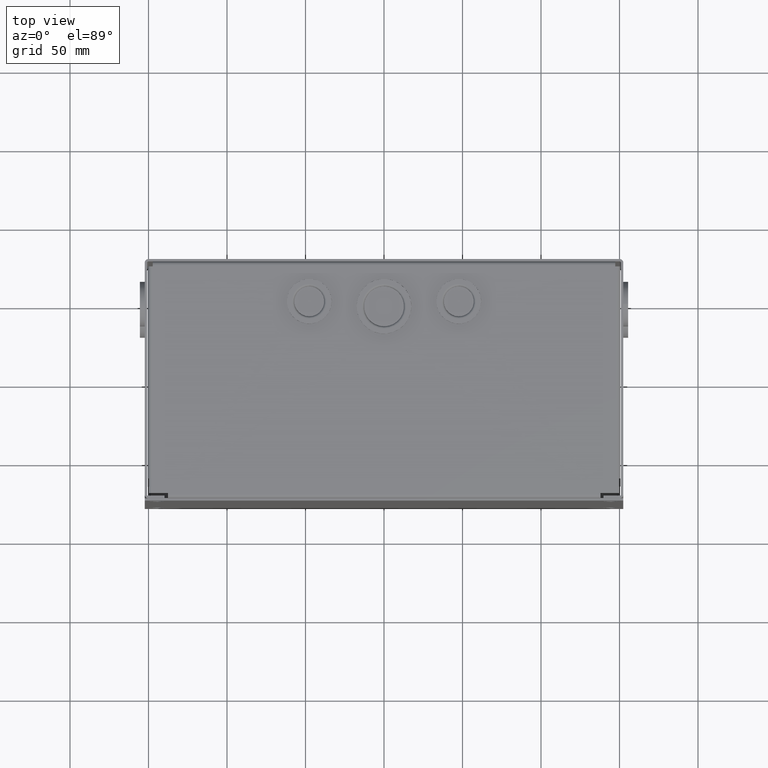
[diagram: clean part render]
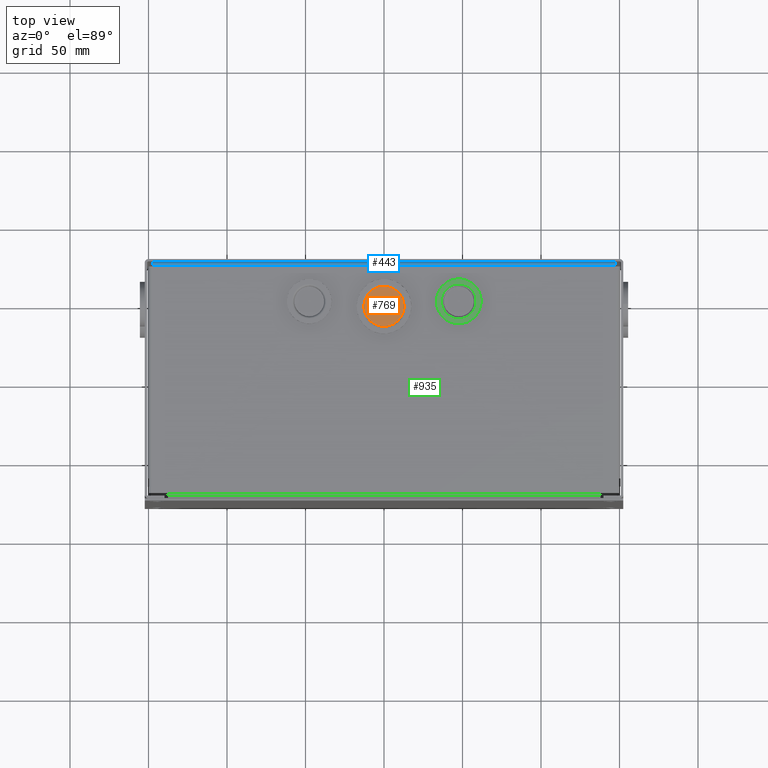
[diagram: same view with three faces highlighted in distinct colors, each labeled with its STEP entity id]
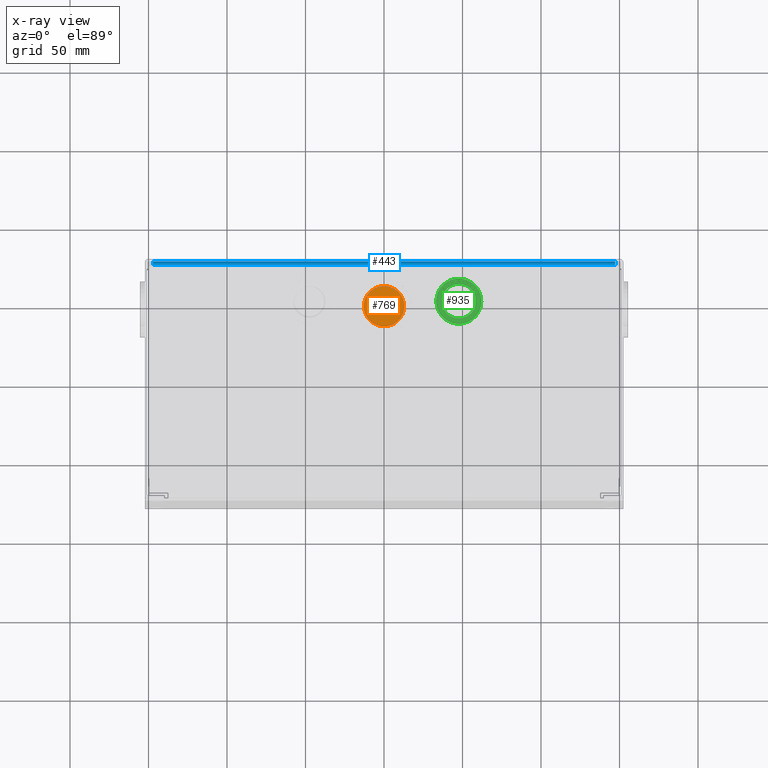
[diagram: x-ray of the same camera — body ghosted, the three highlighted faces saturated]
A machine part, top view with three faces highlighted in distinct colors.
The next image is the same camera in x-ray (body ghosted, the three faces saturated) — at least one of them is partly hidden behind the body in this view.
Their STEP definitions:

[orange] entity #769 — the highlighted planar face has unit normal (-0, 0, 1).
#769 = ADVANCED_FACE( '', ( #1714 ), #1715, .T. );
#1714 = FACE_OUTER_BOUND( '', #2828, .T. );
#1715 = PLANE( '', #2829 );
#2828 = EDGE_LOOP( '', ( #4809 ) );
#2829 = AXIS2_PLACEMENT_3D( '', #4810, #4811, #4812 );
#4809 = ORIENTED_EDGE( '', *, *, #6627, .T. );
#4810 = CARTESIAN_POINT( '', ( 0.000000000000000, -1.52400000000000, -46.7995000000000 ) );
#4811 = DIRECTION( '', ( 0.000000000000000, -1.00000000000000, 0.000000000000000 ) );
#4812 = DIRECTION( '', ( 0.000000000000000, 0.000000000000000, -1.00000000000000 ) );
#6627 = EDGE_CURVE( '', #8014, #8014, #8015, .T. );
#8014 = VERTEX_POINT( '', #9939 );
#8015 = CIRCLE( '', #9940, 12.7635000000000 );
#9939 = CARTESIAN_POINT( '', ( 0.000000000000000, -1.52400000000000, -59.5630000000000 ) );
#9940 = AXIS2_PLACEMENT_3D( '', #11111, #11112, #11113 );
#11111 = CARTESIAN_POINT( '', ( 0.000000000000000, -1.52400000000000, -46.7995000000000 ) );
#11112 = DIRECTION( '', ( 0.000000000000000, -1.00000000000000, 0.000000000000000 ) );
#11113 = DIRECTION( '', ( 0.000000000000000, 0.000000000000000, -1.00000000000000 ) );

[blue] entity #443 — the highlighted cylindrical surface (edge-blend (fillet) strip) has radius 2.3368 mm, axis along (1, 0, 0).
#443 = ADVANCED_FACE( '', ( #1139 ), #1140, .T. );
#1139 = FACE_OUTER_BOUND( '', #2249, .T. );
#1140 = CYLINDRICAL_SURFACE( '', #2250, 2.33680000000000 );
#2249 = EDGE_LOOP( '', ( #3402, #3403, #3404, #3405 ) );
#2250 = AXIS2_PLACEMENT_3D( '', #3406, #3407, #3408 );
#3402 = ORIENTED_EDGE( '', *, *, #5965, .T. );
#3403 = ORIENTED_EDGE( '', *, *, #5966, .F. );
#3404 = ORIENTED_EDGE( '', *, *, #5967, .F. );
#3405 = ORIENTED_EDGE( '', *, *, #5968, .F. );
#3406 = CARTESIAN_POINT( '', ( -147.304529442132, 2.33680000000000, -73.1012000000000 ) );
#3407 = DIRECTION( '', ( -1.00000000000000, -0.000000000000000, -0.000000000000000 ) );
#3408 = DIRECTION( '', ( 0.000000000000000, 1.00000000000000, 0.000000000000000 ) );
#5965 = EDGE_CURVE( '', #6975, #6976, #6977, .T. );
#5966 = EDGE_CURVE( '', #6978, #6976, #6979, .T. );
#5967 = EDGE_CURVE( '', #6980, #6978, #6981, .T. );
#5968 = EDGE_CURVE( '', #6975, #6980, #6982, .T. );
#6975 = VERTEX_POINT( '', #8452 );
#6976 = VERTEX_POINT( '', #8453 );
#6977 = LINE( '', #8454, #8455 );
#6978 = VERTEX_POINT( '', #8456 );
#6979 = CIRCLE( '', #8457, 2.33680000000000 );
#6980 = VERTEX_POINT( '', #8458 );
#6981 = LINE( '', #8459, #8460 );
#6982 = CIRCLE( '', #8461, 2.33680000000000 );
#8452 = CARTESIAN_POINT( '', ( -147.304529442132, 2.33680000000000, -75.4380000000000 ) );
#8453 = CARTESIAN_POINT( '', ( 147.304529442132, 2.33679999999995, -75.4380000000000 ) );
#8454 = CARTESIAN_POINT( '', ( -1040.50147500000, 2.33680000000000, -75.4380000000000 ) );
#8455 = VECTOR( '', #10361, 1000.00000000000 );
#8456 = CARTESIAN_POINT( '', ( 147.304529442132, 0.000000000000000, -73.1012000000000 ) );
#8457 = AXIS2_PLACEMENT_3D( '', #10362, #10363, #10364 );
#8458 = CARTESIAN_POINT( '', ( -147.304529442132, 0.000000000000000, -73.1012000000000 ) );
#8459 = CARTESIAN_POINT( '', ( 148.142325000000, 0.000000000000000, -73.1012000000000 ) );
#8460 = VECTOR( '', #10365, 1000.00000000000 );
#8461 = AXIS2_PLACEMENT_3D( '', #10366, #10367, #10368 );
#10361 = DIRECTION( '', ( 1.00000000000000, -1.54074395550979E-033, 1.33375955164450E-017 ) );
#10362 = CARTESIAN_POINT( '', ( 147.304529442132, 2.33680000000000, -73.1012000000000 ) );
#10363 = DIRECTION( '', ( 1.00000000000000, 0.000000000000000, 0.000000000000000 ) );
#10364 = DIRECTION( '', ( 0.000000000000000, 1.00000000000000, 0.000000000000000 ) );
#10365 = DIRECTION( '', ( 1.00000000000000, 0.000000000000000, 0.000000000000000 ) );
#10366 = CARTESIAN_POINT( '', ( -147.304529442132, 2.33680000000000, -73.1012000000000 ) );
#10367 = DIRECTION( '', ( -1.00000000000000, 0.000000000000000, 0.000000000000000 ) );
#10368 = DIRECTION( '', ( 0.000000000000000, 1.00000000000000, 0.000000000000000 ) );

[green] entity #935 — the highlighted planar face has unit normal (-0, 0, 1).
#935 = ADVANCED_FACE( '', ( #1995, #1996 ), #1997, .T. );
#1995 = FACE_BOUND( '', #3110, .T. );
#1996 = FACE_OUTER_BOUND( '', #3111, .T. );
#1997 = PLANE( '', #3112 );
#3110 = EDGE_LOOP( '', ( #5477 ) );
#3111 = EDGE_LOOP( '', ( #5478 ) );
#3112 = AXIS2_PLACEMENT_3D( '', #5479, #5480, #5481 );
#5477 = ORIENTED_EDGE( '', *, *, #6012, .T. );
#5478 = ORIENTED_EDGE( '', *, *, #6804, .T. );
#5479 = CARTESIAN_POINT( '', ( -47.6250000000000, -3.04800000000000, -49.9745000000000 ) );
#5480 = DIRECTION( '', ( 0.000000000000000, -1.00000000000000, 0.000000000000000 ) );
#5481 = DIRECTION( '', ( 0.000000000000000, 0.000000000000000, -1.00000000000000 ) );
#6012 = EDGE_CURVE( '', #7058, #7058, #7059, .F. );
#6804 = EDGE_CURVE( '', #8227, #8227, #8228, .T. );
#7058 = VERTEX_POINT( '', #8558 );
#7059 = CIRCLE( '', #8559, 11.1125000000000 );
#8227 = VERTEX_POINT( '', #10213 );
#8228 = CIRCLE( '', #10214, 14.2875000000000 );
#8558 = CARTESIAN_POINT( '', ( -47.6250000000000, -3.04800000000000, -61.0870000000000 ) );
#8559 = AXIS2_PLACEMENT_3D( '', #10419, #10420, #10421 );
#10213 = CARTESIAN_POINT( '', ( -33.3375000000000, -3.04800000000000, -49.9745000000000 ) );
#10214 = AXIS2_PLACEMENT_3D( '', #11268, #11269, #11270 );
#10419 = CARTESIAN_POINT( '', ( -47.6250000000000, -3.04800000000000, -49.9745000000000 ) );
#10420 = DIRECTION( '', ( 0.000000000000000, -1.00000000000000, 0.000000000000000 ) );
#10421 = DIRECTION( '', ( 0.000000000000000, 0.000000000000000, -1.00000000000000 ) );
#11268 = CARTESIAN_POINT( '', ( -47.6250000000000, -3.04800000000000, -49.9745000000000 ) );
#11269 = DIRECTION( '', ( 0.000000000000000, -1.00000000000000, 0.000000000000000 ) );
#11270 = DIRECTION( '', ( 1.00000000000000, 0.000000000000000, 0.000000000000000 ) );